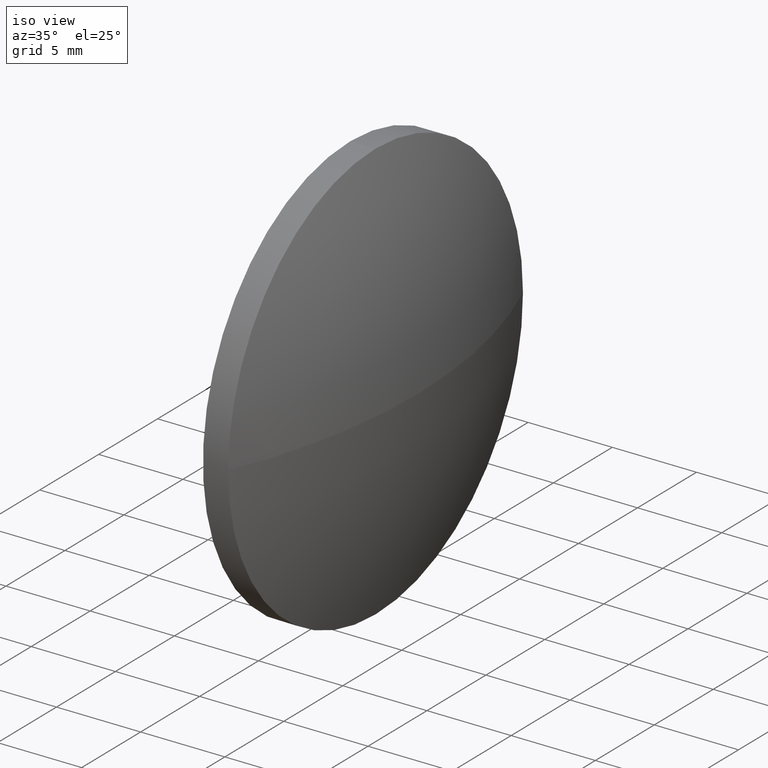
[diagram: clean part render]
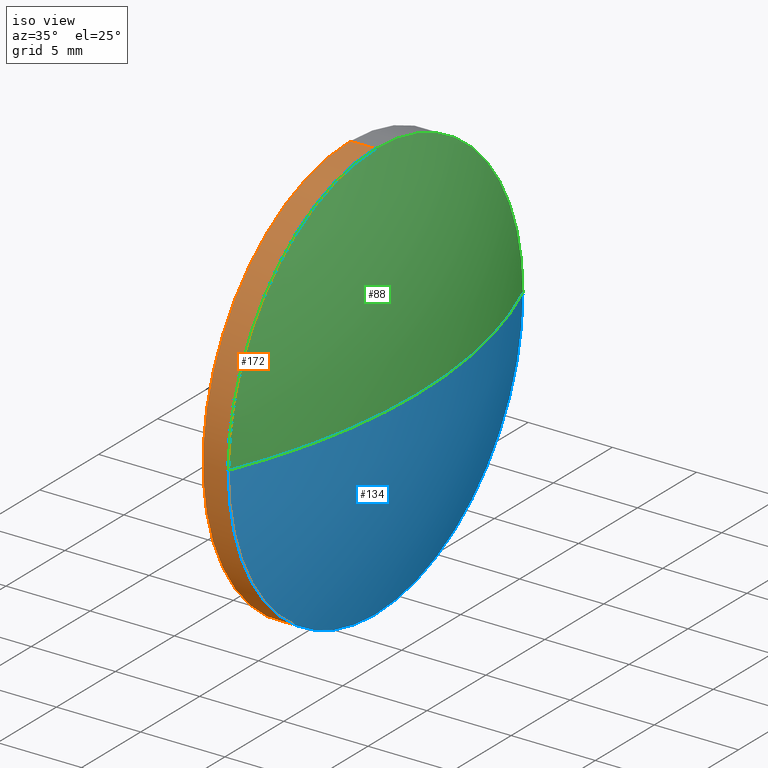
[diagram: same view with three faces highlighted in distinct colors, each labeled with its STEP entity id]
A machine part, iso view with three faces highlighted in distinct colors.
Their STEP definitions:

[orange] entity #172 — the highlighted cylindrical surface (partial cylindrical patch) has radius 12.5 mm, axis along (-1, -0, -0).
#1 = EDGE_CURVE ( 'NONE', #178, #59, #99, .T. ) ;
#5 = LINE ( 'NONE', #156, #85 ) ;
#9 = AXIS2_PLACEMENT_3D ( 'NONE', #64, #38, #117 ) ;
#22 = VERTEX_POINT ( 'NONE', #105 ) ;
#23 = CARTESIAN_POINT ( 'NONE',  ( 590.7578549459785800, 196.7022830089343900, -12.50000000000001100 ) ) ;
#35 = CYLINDRICAL_SURFACE ( 'NONE', #174, 12.50000000000001100 ) ;
#38 = DIRECTION ( 'NONE',  ( -1.000000000000000000, -0.0000000000000000000, -0.0000000000000000000 ) ) ;
#42 = DIRECTION ( 'NONE',  ( 0.0000000000000000000, 0.0000000000000000000, 1.000000000000000000 ) ) ;
#43 = CARTESIAN_POINT ( 'NONE',  ( 590.7578549459785800, 196.7022830089343900, 0.0000000000000000000 ) ) ;
#48 = CIRCLE ( 'NONE', #108, 12.50000000000001100 ) ;
#54 = DIRECTION ( 'NONE',  ( -1.000000000000000000, -0.0000000000000000000, -0.0000000000000000000 ) ) ;
#55 = ORIENTED_EDGE ( 'NONE', *, *, #146, .F. ) ;
#56 = CARTESIAN_POINT ( 'NONE',  ( 592.2578549459785800, 196.7022830089343900, 0.0000000000000000000 ) ) ;
#58 = VECTOR ( 'NONE', #102, 1000.000000000000000 ) ;
#59 = VERTEX_POINT ( 'NONE', #77 ) ;
#63 = ORIENTED_EDGE ( 'NONE', *, *, #1, .T. ) ;
#64 = CARTESIAN_POINT ( 'NONE',  ( 592.2578549459785800, 196.7022830089343900, 0.0000000000000000000 ) ) ;
#67 = ORIENTED_EDGE ( 'NONE', *, *, #135, .T. ) ;
#70 = DIRECTION ( 'NONE',  ( -1.000000000000000000, -0.0000000000000000000, -0.0000000000000000000 ) ) ;
#73 = FACE_OUTER_BOUND ( 'NONE', #173, .T. ) ;
#76 = VERTEX_POINT ( 'NONE', #23 ) ;
#77 = CARTESIAN_POINT ( 'NONE',  ( 592.2578549459785800, 184.2022830089344400, 0.0000000000000000000 ) ) ;
#80 = DIRECTION ( 'NONE',  ( -1.000000000000000000, -0.0000000000000000000, -0.0000000000000000000 ) ) ;
#85 = VECTOR ( 'NONE', #80, 1000.000000000000000 ) ;
#95 = LINE ( 'NONE', #184, #58 ) ;
#96 = DIRECTION ( 'NONE',  ( -1.000000000000000000, -0.0000000000000000000, -0.0000000000000000000 ) ) ;
#97 = CARTESIAN_POINT ( 'NONE',  ( 592.2578549459785800, 196.7022830089343900, 12.50000000000001100 ) ) ;
#99 = CIRCLE ( 'NONE', #9, 12.50000000000001100 ) ;
#102 = DIRECTION ( 'NONE',  ( -1.000000000000000000, -0.0000000000000000000, -0.0000000000000000000 ) ) ;
#104 = ORIENTED_EDGE ( 'NONE', *, *, #115, .T. ) ;
#105 = CARTESIAN_POINT ( 'NONE',  ( 590.7578549459785800, 196.7022830089343900, 12.50000000000001100 ) ) ;
#108 = AXIS2_PLACEMENT_3D ( 'NONE', #56, #70, #165 ) ;
#110 = CIRCLE ( 'NONE', #116, 12.50000000000001100 ) ;
#115 = EDGE_CURVE ( 'NONE', #59, #169, #48, .T. ) ;
#116 = AXIS2_PLACEMENT_3D ( 'NONE', #43, #54, #163 ) ;
#117 = DIRECTION ( 'NONE',  ( 0.0000000000000000000, 0.0000000000000000000, 1.000000000000000000 ) ) ;
#118 = ORIENTED_EDGE ( 'NONE', *, *, #161, .F. ) ;
#127 = CARTESIAN_POINT ( 'NONE',  ( 588.3922390432176100, 196.7022830089343900, 0.0000000000000000000 ) ) ;
#135 = EDGE_CURVE ( 'NONE', #169, #22, #5, .T. ) ;
#146 = EDGE_CURVE ( 'NONE', #76, #22, #110, .T. ) ;
#155 = CARTESIAN_POINT ( 'NONE',  ( 592.2578549459785800, 196.7022830089343900, -12.50000000000001100 ) ) ;
#156 = CARTESIAN_POINT ( 'NONE',  ( 588.3922390432176100, 196.7022830089343900, 12.50000000000001100 ) ) ;
#161 = EDGE_CURVE ( 'NONE', #178, #76, #95, .T. ) ;
#163 = DIRECTION ( 'NONE',  ( 0.0000000000000000000, 0.0000000000000000000, 1.000000000000000000 ) ) ;
#165 = DIRECTION ( 'NONE',  ( 0.0000000000000000000, 0.0000000000000000000, 1.000000000000000000 ) ) ;
#169 = VERTEX_POINT ( 'NONE', #97 ) ;
#172 = ADVANCED_FACE ( 'NONE', ( #73 ), #35, .T. ) ;
#173 = EDGE_LOOP ( 'NONE', ( #118, #63, #104, #67, #55 ) ) ;
#174 = AXIS2_PLACEMENT_3D ( 'NONE', #127, #96, #42 ) ;
#178 = VERTEX_POINT ( 'NONE', #155 ) ;
#184 = CARTESIAN_POINT ( 'NONE',  ( 588.3922390432176100, 196.7022830089343900, -12.50000000000001100 ) ) ;

[blue] entity #134 — the highlighted spherical surface has radius 32.5 mm.
#1 = EDGE_CURVE ( 'NONE', #178, #59, #99, .T. ) ;
#2 = CARTESIAN_POINT ( 'NONE',  ( 594.7578549459785800, 196.7022830089344200, 0.0000000000000000000 ) ) ;
#7 = CARTESIAN_POINT ( 'NONE',  ( 562.2578549459785800, 196.7022830089344200, 0.0000000000000000000 ) ) ;
#9 = AXIS2_PLACEMENT_3D ( 'NONE', #64, #38, #117 ) ;
#11 = DIRECTION ( 'NONE',  ( 0.0000000000000000000, -1.000000000000000000, -1.224646799147353200E-016 ) ) ;
#13 = CARTESIAN_POINT ( 'NONE',  ( 592.2578549459785800, 196.7022830089343900, 0.0000000000000000000 ) ) ;
#17 = CIRCLE ( 'NONE', #49, 12.50000000000001100 ) ;
#18 = VERTEX_POINT ( 'NONE', #180 ) ;
#19 = AXIS2_PLACEMENT_3D ( 'NONE', #7, #93, #53 ) ;
#24 = DIRECTION ( 'NONE',  ( -1.000000000000000000, -0.0000000000000000000, -0.0000000000000000000 ) ) ;
#26 = DIRECTION ( 'NONE',  ( 0.0000000000000000000, 0.0000000000000000000, 1.000000000000000000 ) ) ;
#29 = ORIENTED_EDGE ( 'NONE', *, *, #124, .F. ) ;
#31 = EDGE_LOOP ( 'NONE', ( #114, #138, #160, #29 ) ) ;
#38 = DIRECTION ( 'NONE',  ( -1.000000000000000000, -0.0000000000000000000, -0.0000000000000000000 ) ) ;
#41 = EDGE_CURVE ( 'NONE', #144, #59, #83, .T. ) ;
#49 = AXIS2_PLACEMENT_3D ( 'NONE', #13, #24, #154 ) ;
#53 = DIRECTION ( 'NONE',  ( -1.000000000000000000, 0.0000000000000000000, 0.0000000000000000000 ) ) ;
#59 = VERTEX_POINT ( 'NONE', #77 ) ;
#64 = CARTESIAN_POINT ( 'NONE',  ( 592.2578549459785800, 196.7022830089343900, 0.0000000000000000000 ) ) ;
#72 = AXIS2_PLACEMENT_3D ( 'NONE', #152, #26, #157 ) ;
#77 = CARTESIAN_POINT ( 'NONE',  ( 592.2578549459785800, 184.2022830089344400, 0.0000000000000000000 ) ) ;
#79 = DIRECTION ( 'NONE',  ( 0.0000000000000000000, -1.224646799147353200E-016, 1.000000000000000000 ) ) ;
#83 = CIRCLE ( 'NONE', #19, 32.49999999999997200 ) ;
#93 = DIRECTION ( 'NONE',  ( 0.0000000000000000000, 0.0000000000000000000, -1.000000000000000000 ) ) ;
#98 = EDGE_CURVE ( 'NONE', #144, #18, #164, .T. ) ;
#99 = CIRCLE ( 'NONE', #9, 12.50000000000001100 ) ;
#114 = ORIENTED_EDGE ( 'NONE', *, *, #98, .F. ) ;
#117 = DIRECTION ( 'NONE',  ( 0.0000000000000000000, 0.0000000000000000000, 1.000000000000000000 ) ) ;
#124 = EDGE_CURVE ( 'NONE', #18, #178, #17, .T. ) ;
#132 = SPHERICAL_SURFACE ( 'NONE', #72, 32.49999999999999300 ) ;
#134 = ADVANCED_FACE ( 'NONE', ( #181 ), #132, .T. ) ;
#138 = ORIENTED_EDGE ( 'NONE', *, *, #41, .T. ) ;
#143 = AXIS2_PLACEMENT_3D ( 'NONE', #162, #79, #11 ) ;
#144 = VERTEX_POINT ( 'NONE', #2 ) ;
#152 = CARTESIAN_POINT ( 'NONE',  ( 562.2578549459785800, 196.7022830089344200, 0.0000000000000000000 ) ) ;
#154 = DIRECTION ( 'NONE',  ( 0.0000000000000000000, 0.0000000000000000000, 1.000000000000000000 ) ) ;
#155 = CARTESIAN_POINT ( 'NONE',  ( 592.2578549459785800, 196.7022830089343900, -12.50000000000001100 ) ) ;
#157 = DIRECTION ( 'NONE',  ( 0.0000000000000000000, -1.000000000000000000, 0.0000000000000000000 ) ) ;
#160 = ORIENTED_EDGE ( 'NONE', *, *, #1, .F. ) ;
#162 = CARTESIAN_POINT ( 'NONE',  ( 562.2578549459785800, 196.7022830089344200, 0.0000000000000000000 ) ) ;
#164 = CIRCLE ( 'NONE', #143, 32.50000000000000000 ) ;
#178 = VERTEX_POINT ( 'NONE', #155 ) ;
#180 = CARTESIAN_POINT ( 'NONE',  ( 592.2578549459785800, 209.2022830089343600, 1.530808498934184400E-015 ) ) ;
#181 = FACE_OUTER_BOUND ( 'NONE', #31, .T. ) ;

[green] entity #88 — the highlighted spherical surface has radius 32.5 mm.
#2 = CARTESIAN_POINT ( 'NONE',  ( 594.7578549459785800, 196.7022830089344200, 0.0000000000000000000 ) ) ;
#3 = FACE_OUTER_BOUND ( 'NONE', #107, .T. ) ;
#7 = CARTESIAN_POINT ( 'NONE',  ( 562.2578549459785800, 196.7022830089344200, 0.0000000000000000000 ) ) ;
#11 = DIRECTION ( 'NONE',  ( 0.0000000000000000000, -1.000000000000000000, -1.224646799147353200E-016 ) ) ;
#16 = DIRECTION ( 'NONE',  ( 0.0000000000000000000, 0.0000000000000000000, 1.000000000000000000 ) ) ;
#18 = VERTEX_POINT ( 'NONE', #180 ) ;
#19 = AXIS2_PLACEMENT_3D ( 'NONE', #7, #93, #53 ) ;
#41 = EDGE_CURVE ( 'NONE', #144, #59, #83, .T. ) ;
#48 = CIRCLE ( 'NONE', #108, 12.50000000000001100 ) ;
#52 = SPHERICAL_SURFACE ( 'NONE', #89, 32.49999999999999300 ) ;
#53 = DIRECTION ( 'NONE',  ( -1.000000000000000000, 0.0000000000000000000, 0.0000000000000000000 ) ) ;
#56 = CARTESIAN_POINT ( 'NONE',  ( 592.2578549459785800, 196.7022830089343900, 0.0000000000000000000 ) ) ;
#59 = VERTEX_POINT ( 'NONE', #77 ) ;
#61 = DIRECTION ( 'NONE',  ( 0.0000000000000000000, 0.0000000000000000000, 1.000000000000000000 ) ) ;
#70 = DIRECTION ( 'NONE',  ( -1.000000000000000000, -0.0000000000000000000, -0.0000000000000000000 ) ) ;
#74 = AXIS2_PLACEMENT_3D ( 'NONE', #125, #185, #16 ) ;
#77 = CARTESIAN_POINT ( 'NONE',  ( 592.2578549459785800, 184.2022830089344400, 0.0000000000000000000 ) ) ;
#79 = DIRECTION ( 'NONE',  ( 0.0000000000000000000, -1.224646799147353200E-016, 1.000000000000000000 ) ) ;
#83 = CIRCLE ( 'NONE', #19, 32.49999999999997200 ) ;
#87 = ORIENTED_EDGE ( 'NONE', *, *, #41, .F. ) ;
#88 = ADVANCED_FACE ( 'NONE', ( #3 ), #52, .T. ) ;
#89 = AXIS2_PLACEMENT_3D ( 'NONE', #136, #61, #109 ) ;
#91 = ORIENTED_EDGE ( 'NONE', *, *, #145, .F. ) ;
#93 = DIRECTION ( 'NONE',  ( 0.0000000000000000000, 0.0000000000000000000, -1.000000000000000000 ) ) ;
#97 = CARTESIAN_POINT ( 'NONE',  ( 592.2578549459785800, 196.7022830089343900, 12.50000000000001100 ) ) ;
#98 = EDGE_CURVE ( 'NONE', #144, #18, #164, .T. ) ;
#107 = EDGE_LOOP ( 'NONE', ( #87, #149, #91, #183 ) ) ;
#108 = AXIS2_PLACEMENT_3D ( 'NONE', #56, #70, #165 ) ;
#109 = DIRECTION ( 'NONE',  ( 0.0000000000000000000, -1.000000000000000000, 0.0000000000000000000 ) ) ;
#115 = EDGE_CURVE ( 'NONE', #59, #169, #48, .T. ) ;
#125 = CARTESIAN_POINT ( 'NONE',  ( 592.2578549459785800, 196.7022830089343900, 0.0000000000000000000 ) ) ;
#130 = CIRCLE ( 'NONE', #74, 12.50000000000001100 ) ;
#136 = CARTESIAN_POINT ( 'NONE',  ( 562.2578549459785800, 196.7022830089344200, 0.0000000000000000000 ) ) ;
#143 = AXIS2_PLACEMENT_3D ( 'NONE', #162, #79, #11 ) ;
#144 = VERTEX_POINT ( 'NONE', #2 ) ;
#145 = EDGE_CURVE ( 'NONE', #169, #18, #130, .T. ) ;
#149 = ORIENTED_EDGE ( 'NONE', *, *, #98, .T. ) ;
#162 = CARTESIAN_POINT ( 'NONE',  ( 562.2578549459785800, 196.7022830089344200, 0.0000000000000000000 ) ) ;
#164 = CIRCLE ( 'NONE', #143, 32.50000000000000000 ) ;
#165 = DIRECTION ( 'NONE',  ( 0.0000000000000000000, 0.0000000000000000000, 1.000000000000000000 ) ) ;
#169 = VERTEX_POINT ( 'NONE', #97 ) ;
#180 = CARTESIAN_POINT ( 'NONE',  ( 592.2578549459785800, 209.2022830089343600, 1.530808498934184400E-015 ) ) ;
#183 = ORIENTED_EDGE ( 'NONE', *, *, #115, .F. ) ;
#185 = DIRECTION ( 'NONE',  ( -1.000000000000000000, -0.0000000000000000000, -0.0000000000000000000 ) ) ;